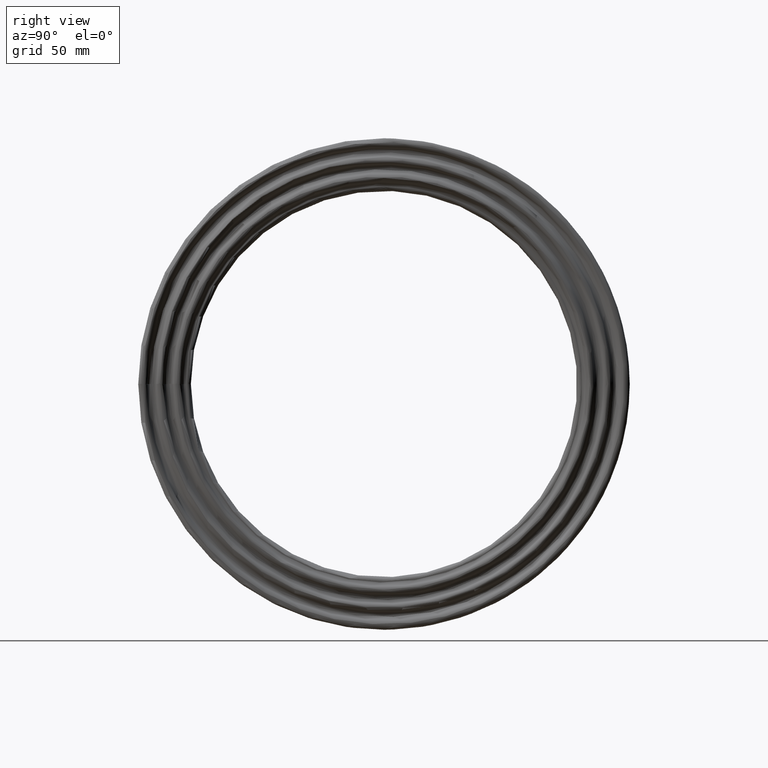
[diagram: clean part render]
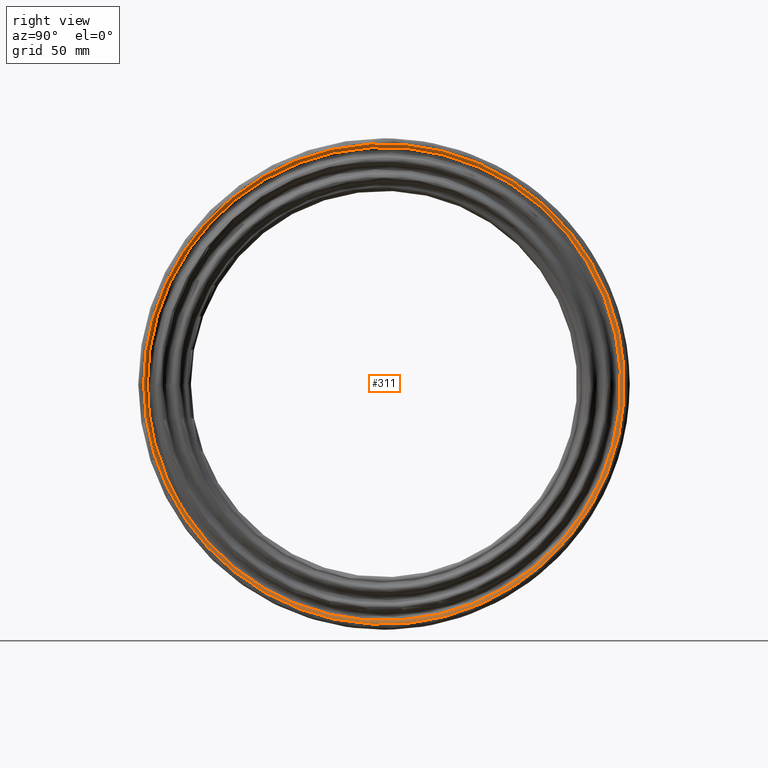
[diagram: same view with one face highlighted and labeled with its STEP entity id]
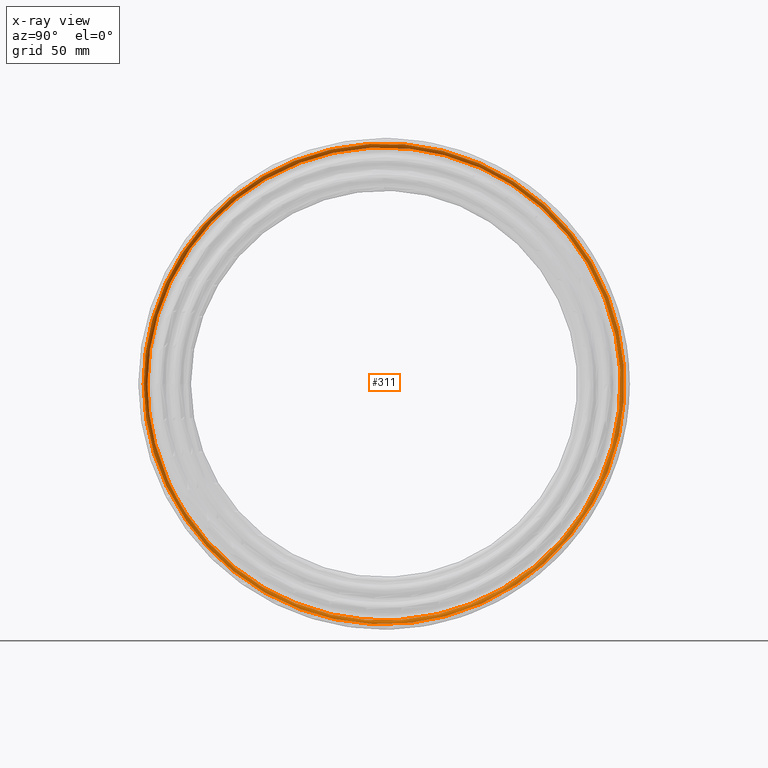
[diagram: x-ray of the same camera — body ghosted, the highlighted face saturated]
A machine part, right view. The second image highlights one B-rep face of the part: STEP entity #311.
The next image is the same camera in x-ray: the body ghosted, the highlighted face saturated — about 0% of this face is hidden behind the body in this view.
In plain terms, the highlighted face is a freeform B-spline surface patch.
Its self-contained STEP definition (entity closure, byte-faithful):
#16=B_SPLINE_SURFACE_WITH_KNOTS('',3,3,((#954,#955,#956,#957,#958,#959,
#960,#961,#962,#963,#964,#965,#966,#967,#968,#969,#970,#971,#972,#973,#974,
#975,#976,#977,#978,#979,#980,#981,#982,#983,#984,#985,#986,#987,#988,#989,
#990,#991,#992,#993,#994,#995,#996,#997,#998,#999,#1000,#1001,#1002),(#1003,
#1004,#1005,#1006,#1007,#1008,#1009,#1010,#1011,#1012,#1013,#1014,#1015,
#1016,#1017,#1018,#1019,#1020,#1021,#1022,#1023,#1024,#1025,#1026,#1027,
#1028,#1029,#1030,#1031,#1032,#1033,#1034,#1035,#1036,#1037,#1038,#1039,
#1040,#1041,#1042,#1043,#1044,#1045,#1046,#1047,#1048,#1049,#1050,#1051),
(#1052,#1053,#1054,#1055,#1056,#1057,#1058,#1059,#1060,#1061,#1062,#1063,
#1064,#1065,#1066,#1067,#1068,#1069,#1070,#1071,#1072,#1073,#1074,#1075,
#1076,#1077,#1078,#1079,#1080,#1081,#1082,#1083,#1084,#1085,#1086,#1087,
#1088,#1089,#1090,#1091,#1092,#1093,#1094,#1095,#1096,#1097,#1098,#1099,
#1100),(#1101,#1102,#1103,#1104,#1105,#1106,#1107,#1108,#1109,#1110,#1111,
#1112,#1113,#1114,#1115,#1116,#1117,#1118,#1119,#1120,#1121,#1122,#1123,
#1124,#1125,#1126,#1127,#1128,#1129,#1130,#1131,#1132,#1133,#1134,#1135,
#1136,#1137,#1138,#1139,#1140,#1141,#1142,#1143,#1144,#1145,#1146,#1147,
#1148,#1149),(#1150,#1151,#1152,#1153,#1154,#1155,#1156,#1157,#1158,#1159,
#1160,#1161,#1162,#1163,#1164,#1165,#1166,#1167,#1168,#1169,#1170,#1171,
#1172,#1173,#1174,#1175,#1176,#1177,#1178,#1179,#1180,#1181,#1182,#1183,
#1184,#1185,#1186,#1187,#1188,#1189,#1190,#1191,#1192,#1193,#1194,#1195,
#1196,#1197,#1198)),.UNSPECIFIED.,.F.,.T.,.F.,(4,1,4),(4,1,1,1,1,1,1,1,
1,1,1,1,1,1,1,1,1,1,1,1,1,1,1,1,1,1,1,1,1,1,1,1,1,1,1,1,1,1,1,1,1,1,1,1,
1,1,4),(0.,0.571428571428571,1.),(-41.5385224444254,-40.055003785696,-38.5714851269665,
-37.087966468237,-35.6044478095075,-32.6374104920486,-31.1538918333191,
-29.6703731745896,-27.6923482962836,-26.7033358571306,-25.7143234179777,
-23.7362985396717,-21.7582736613657,-19.7802487830597,-17.8022239047538,
-15.8241990264478,-14.8351865872948,-14.3406803677183,-13.8461741481418,
-10.8791368306829,-9.89012439152987,-7.91209951322389,-5.93407463491792,
-3.95604975661195,-1.97802487830597,1.97802487830597,5.93407463491792,7.4175932936474,
8.90111195237688,10.3846306111064,11.8681492698358,14.8351865872948,16.3187052460243,
17.8022239047538,20.7692612222127,22.2527798809422,23.7362985396717,25.7143234179777,
27.6923482962836,29.6703731745896,31.1538918333191,31.8956511626838,32.6374104920486,
35.6044478095075,38.5714851269665,40.055003785696,41.5385224444254),
 .UNSPECIFIED.);
#27=B_SPLINE_CURVE_WITH_KNOTS('',3,(#1202,#1203,#1204,#1205,#1206,#1207,
#1208,#1209,#1210,#1211,#1212,#1213,#1214,#1215,#1216,#1217,#1218,#1219,
#1220,#1221,#1222,#1223,#1224,#1225,#1226,#1227,#1228,#1229,#1230,#1231,
#1232,#1233,#1234,#1235,#1236,#1237,#1238,#1239,#1240,#1241,#1242,#1243,
#1244,#1245,#1246,#1247,#1248,#1249,#1250),.UNSPECIFIED.,.T.,.F.,(4,1,1,
1,1,1,1,1,1,1,1,1,1,1,1,1,1,1,1,1,1,1,1,1,1,1,1,1,1,1,1,1,1,1,1,1,1,1,1,
1,1,1,1,1,1,1,4),(-41.5385224444254,-40.055003785696,-38.5714851269665,
-37.087966468237,-35.6044478095075,-32.6374104920486,-31.1538918333191,
-29.6703731745896,-27.6923482962836,-26.7033358571306,-25.7143234179777,
-23.7362985396717,-21.7582736613657,-19.7802487830597,-17.8022239047538,
-15.8241990264478,-14.8351865872948,-14.3406803677183,-13.8461741481418,
-10.8791368306829,-9.89012439152987,-7.91209951322389,-5.93407463491792,
-3.95604975661195,-1.97802487830597,1.97802487830597,5.93407463491792,7.4175932936474,
8.90111195237688,10.3846306111064,11.8681492698358,14.8351865872948,16.3187052460243,
17.8022239047538,20.7692612222127,22.2527798809422,23.7362985396717,25.7143234179777,
27.6923482962836,29.6703731745896,31.1538918333191,31.8956511626838,32.6374104920486,
35.6044478095075,38.5714851269665,40.055003785696,41.5385224444254),
 .UNSPECIFIED.);
#28=B_SPLINE_CURVE_WITH_KNOTS('',3,(#1251,#1252,#1253,#1254,#1255,#1256,
#1257,#1258,#1259,#1260,#1261,#1262,#1263,#1264,#1265,#1266,#1267,#1268,
#1269,#1270,#1271,#1272,#1273,#1274,#1275,#1276,#1277,#1278,#1279,#1280,
#1281,#1282,#1283,#1284,#1285,#1286,#1287,#1288,#1289,#1290,#1291,#1292,
#1293,#1294,#1295,#1296,#1297,#1298,#1299),.UNSPECIFIED.,.T.,.F.,(4,1,1,
1,1,1,1,1,1,1,1,1,1,1,1,1,1,1,1,1,1,1,1,1,1,1,1,1,1,1,1,1,1,1,1,1,1,1,1,
1,1,1,1,1,1,1,4),(-41.5385224444254,-40.055003785696,-38.5714851269665,
-35.6044478095075,-32.6374104920486,-31.8956511626838,-31.1538918333191,
-29.6703731745896,-27.6923482962836,-25.7143234179777,-23.7362985396717,
-22.2527798809422,-20.7692612222127,-17.8022239047538,-16.3187052460243,
-14.8351865872948,-11.8681492698358,-10.3846306111064,-8.90111195237688,
-7.4175932936474,-5.93407463491792,-1.97802487830597,1.97802487830597,3.95604975661195,
5.93407463491792,7.91209951322389,9.89012439152987,10.8791368306829,13.8461741481418,
14.3406803677183,14.8351865872948,15.8241990264478,17.8022239047538,19.7802487830597,
21.7582736613657,23.7362985396717,25.7143234179777,26.7033358571306,27.6923482962836,
29.6703731745896,31.1538918333191,32.6374104920486,35.6044478095075,37.087966468237,
38.5714851269665,40.055003785696,41.5385224444254),.UNSPECIFIED.);
#72=FACE_OUTER_BOUND('',#105,.T.);
#105=EDGE_LOOP('',(#243,#244,#245,#246));
#150=CIRCLE('',#345,2.25);
#175=VERTEX_POINT('',#1199);
#176=VERTEX_POINT('',#1200);
#204=EDGE_CURVE('',#175,#176,#150,.T.);
#205=EDGE_CURVE('',#176,#176,#27,.T.);
#206=EDGE_CURVE('',#175,#175,#28,.T.);
#243=ORIENTED_EDGE('',*,*,#204,.T.);
#244=ORIENTED_EDGE('',*,*,#205,.T.);
#245=ORIENTED_EDGE('',*,*,#204,.F.);
#246=ORIENTED_EDGE('',*,*,#206,.T.);
#311=ADVANCED_FACE('',(#72),#16,.F.);
#345=AXIS2_PLACEMENT_3D('',#1201,#403,#404);
#403=DIRECTION('center_axis',(0.,-0.00081182891061768,0.999999670466856));
#404=DIRECTION('ref_axis',(1.,0.,0.));
#954=CARTESIAN_POINT('Ctrl Pts',(124.65,-130.957671081783,-0.108830614933108));
#955=CARTESIAN_POINT('Ctrl Pts',(124.65,-130.961216108405,4.77395304280881));
#956=CARTESIAN_POINT('Ctrl Pts',(124.65,-130.425708019639,14.5188818939948));
#957=CARTESIAN_POINT('Ctrl Pts',(124.65,-127.975323919352,29.090343558485));
#958=CARTESIAN_POINT('Ctrl Pts',(124.65,-123.880178533906,43.2942716606048));
#959=CARTESIAN_POINT('Ctrl Pts',(124.65,-116.444719003217,61.3125513200568));
#960=CARTESIAN_POINT('Ctrl Pts',(124.65,-105.91510343268,78.1172675412161));
#961=CARTESIAN_POINT('Ctrl Pts',(124.65,-92.8409401508834,92.7452942699471));
#962=CARTESIAN_POINT('Ctrl Pts',(124.65,-80.7249609452152,103.595784999238));
#963=CARTESIAN_POINT('Ctrl Pts',(124.65,-68.4883479046173,111.961772542282));
#964=CARTESIAN_POINT('Ctrl Pts',(124.65,-56.904870191585,118.08271617449));
#965=CARTESIAN_POINT('Ctrl Pts',(124.65,-44.9872357226106,123.287864444684));
#966=CARTESIAN_POINT('Ctrl Pts',(124.65,-29.3646462335705,128.133204620279));
#967=CARTESIAN_POINT('Ctrl Pts',(124.65,-9.80943368560868,131.079879217141));
#968=CARTESIAN_POINT('Ctrl Pts',(124.65,9.69780996983344,131.083597877989));
#969=CARTESIAN_POINT('Ctrl Pts',(124.65,29.2101041650635,128.170743464469));
#970=CARTESIAN_POINT('Ctrl Pts',(124.65,44.8977777010314,123.320527478537));
#971=CARTESIAN_POINT('Ctrl Pts',(124.65,55.3083095225759,118.783727935107));
#972=CARTESIAN_POINT('Ctrl Pts',(124.65,61.1398356160118,115.843702479551));
#973=CARTESIAN_POINT('Ctrl Pts',(124.65,72.5912268331176,109.530254813661));
#974=CARTESIAN_POINT('Ctrl Pts',(124.65,84.5695837078912,100.679563710782));
#975=CARTESIAN_POINT('Ctrl Pts',(124.65,98.3423448776455,86.9031672273606));
#976=CARTESIAN_POINT('Ctrl Pts',(124.65,108.596558057143,74.0796539980984));
#977=CARTESIAN_POINT('Ctrl Pts',(124.65,118.44403111716,56.991064141811));
#978=CARTESIAN_POINT('Ctrl Pts',(124.65,125.582103927173,38.8279442439722));
#979=CARTESIAN_POINT('Ctrl Pts',(124.65,131.457953122996,13.1326221967826));
#980=CARTESIAN_POINT('Ctrl Pts',(124.65,131.426641280894,-19.7264520513109));
#981=CARTESIAN_POINT('Ctrl Pts',(124.65,122.276558809697,-49.5876836698971));
#982=CARTESIAN_POINT('Ctrl Pts',(124.65,111.262082240206,-69.5816662198445));
#983=CARTESIAN_POINT('Ctrl Pts',(124.65,102.732132546793,-81.6726282324016));
#984=CARTESIAN_POINT('Ctrl Pts',(124.65,92.912084905339,-92.6692896805889));
#985=CARTESIAN_POINT('Ctrl Pts',(124.65,78.413909623472,-105.691372631273));
#986=CARTESIAN_POINT('Ctrl Pts',(124.65,61.5878866347077,-116.30572282949));
#987=CARTESIAN_POINT('Ctrl Pts',(124.65,43.5447386430267,-123.790532534644));
#988=CARTESIAN_POINT('Ctrl Pts',(124.65,24.7305641660107,-129.26432821957));
#989=CARTESIAN_POINT('Ctrl Pts',(124.65,5.00149211385442,-131.504362654842));
#990=CARTESIAN_POINT('Ctrl Pts',(124.65,-14.4491799494935,-130.429813776537));
#991=CARTESIAN_POINT('Ctrl Pts',(124.65,-30.6512721215587,-127.717435764624));
#992=CARTESIAN_POINT('Ctrl Pts',(124.65,-47.912000407163,-122.398793057873));
#993=CARTESIAN_POINT('Ctrl Pts',(124.65,-65.5137216001761,-113.955641300163));
#994=CARTESIAN_POINT('Ctrl Pts',(124.65,-80.5045028362632,-103.777368589552));
#995=CARTESIAN_POINT('Ctrl Pts',(124.65,-90.8830156987348,-94.5079881542439));
#996=CARTESIAN_POINT('Ctrl Pts',(124.65,-97.5815943936001,-87.4376233930404));
#997=CARTESIAN_POINT('Ctrl Pts',(124.65,-107.07309587844,-76.2444434021714));
#998=CARTESIAN_POINT('Ctrl Pts',(124.65,-118.96026060563,-57.3441718140211));
#999=CARTESIAN_POINT('Ctrl Pts',(124.65,-127.063328380664,-34.2457365507681));
#1000=CARTESIAN_POINT('Ctrl Pts',(124.65,-130.404437859911,-14.7778200524567));
#1001=CARTESIAN_POINT('Ctrl Pts',(124.65,-130.954126055162,-4.99161427267503));
#1002=CARTESIAN_POINT('Ctrl Pts',(124.65,-130.957671081783,-0.108830614933108));
#1003=CARTESIAN_POINT('Ctrl Pts',(125.105355940461,-131.156402577936,-0.108995822006488));
#1004=CARTESIAN_POINT('Ctrl Pts',(125.105355940461,-131.159952608357,4.78119442321774));
#1005=CARTESIAN_POINT('Ctrl Pts',(125.105355940461,-130.62363121532,14.5409052083821));
#1006=CARTESIAN_POINT('Ctrl Pts',(125.105355940461,-128.169530543908,29.1344911967642));
#1007=CARTESIAN_POINT('Ctrl Pts',(125.105355940461,-124.068166066949,43.3599753686274));
#1008=CARTESIAN_POINT('Ctrl Pts',(125.105355940461,-116.621439778712,61.4055699890023));
#1009=CARTESIAN_POINT('Ctrl Pts',(125.105355940461,-106.075817756107,78.2358345241083));
#1010=CARTESIAN_POINT('Ctrl Pts',(125.105355940461,-92.9818272559156,92.8860344074895));
#1011=CARTESIAN_POINT('Ctrl Pts',(125.105355940461,-80.8474762764596,103.752986681619));
#1012=CARTESIAN_POINT('Ctrl Pts',(125.105355940461,-68.5922584612096,112.131688508307));
#1013=CARTESIAN_POINT('Ctrl Pts',(125.105355940461,-56.9912267618248,118.26190880736));
#1014=CARTESIAN_POINT('Ctrl Pts',(125.105355940461,-45.0555201429594,123.474948560351));
#1015=CARTESIAN_POINT('Ctrl Pts',(125.105355940461,-29.4091955432063,128.32765601771));
#1016=CARTESIAN_POINT('Ctrl Pts',(125.105355940461,-9.8243266587327,131.27879059349));
#1017=CARTESIAN_POINT('Ctrl Pts',(125.105355940461,9.71253045774402,131.282522663668));
#1018=CARTESIAN_POINT('Ctrl Pts',(125.105355940461,29.2544139801513,128.365247070436));
#1019=CARTESIAN_POINT('Ctrl Pts',(125.105355940461,44.9659444446173,123.507658651108));
#1020=CARTESIAN_POINT('Ctrl Pts',(125.105355940461,55.3922424441104,118.963982874901));
#1021=CARTESIAN_POINT('Ctrl Pts',(125.105355940461,61.2326118288304,116.019501962068));
#1022=CARTESIAN_POINT('Ctrl Pts',(125.105355940461,72.7013187357341,109.696502907458));
#1023=CARTESIAN_POINT('Ctrl Pts',(125.105355940461,84.6979696209217,100.832313418957));
#1024=CARTESIAN_POINT('Ctrl Pts',(125.105355940461,98.4915464118889,87.0350723084942));
#1025=CARTESIAN_POINT('Ctrl Pts',(125.105355940461,108.76137487479,74.1920582050284));
#1026=CARTESIAN_POINT('Ctrl Pts',(125.105355940461,118.623762105649,57.0775532957814));
#1027=CARTESIAN_POINT('Ctrl Pts',(125.105355940461,125.772684000528,38.886868675516));
#1028=CARTESIAN_POINT('Ctrl Pts',(125.105355940461,131.657433067035,13.1525501725651));
#1029=CARTESIAN_POINT('Ctrl Pts',(125.105355940461,131.626095984788,-19.7563842348226));
#1030=CARTESIAN_POINT('Ctrl Pts',(125.105355940461,122.462104004358,-49.662940027176));
#1031=CARTESIAN_POINT('Ctrl Pts',(125.105355940461,111.430929117808,-69.6872586266847));
#1032=CARTESIAN_POINT('Ctrl Pts',(125.105355940461,102.888019671345,-81.7965779691335));
#1033=CARTESIAN_POINT('Ctrl Pts',(125.105355940461,93.0530861328584,-92.8099128795599));
#1034=CARTESIAN_POINT('Ctrl Pts',(125.105355940461,78.5329230933385,-105.851746243988));
#1035=CARTESIAN_POINT('Ctrl Pts',(125.105355940461,61.6813278294475,-116.482232875799));
#1036=CARTESIAN_POINT('Ctrl Pts',(125.105355940461,43.6108168671011,-123.97838479386));
#1037=CARTESIAN_POINT('Ctrl Pts',(125.105355940461,24.768120477641,-129.460487275609));
#1038=CARTESIAN_POINT('Ctrl Pts',(125.105355940461,5.00905108132669,-131.703923531577));
#1039=CARTESIAN_POINT('Ctrl Pts',(125.105355940461,-14.4710979217004,-130.627744125245));
#1040=CARTESIAN_POINT('Ctrl Pts',(125.105355940461,-30.6977920467709,-127.911248985334));
#1041=CARTESIAN_POINT('Ctrl Pts',(125.105355940461,-47.984709635484,-122.584534037209));
#1042=CARTESIAN_POINT('Ctrl Pts',(125.105355940461,-65.6131338563275,-114.128575045788));
#1043=CARTESIAN_POINT('Ctrl Pts',(125.105355940461,-80.626668304182,-103.934855269323));
#1044=CARTESIAN_POINT('Ctrl Pts',(125.105355940461,-91.020948602764,-94.6513897764169));
#1045=CARTESIAN_POINT('Ctrl Pts',(125.105355940461,-97.7296744075116,-87.5703152717136));
#1046=CARTESIAN_POINT('Ctrl Pts',(125.105355940461,-107.235555963619,-76.3601758187098));
#1047=CARTESIAN_POINT('Ctrl Pts',(125.105355940461,-119.140800501208,-57.4311781937769));
#1048=CARTESIAN_POINT('Ctrl Pts',(125.105355940461,-127.25614699308,-34.2977013035704));
#1049=CARTESIAN_POINT('Ctrl Pts',(125.105355940461,-130.602331032794,-14.8002362629633));
#1050=CARTESIAN_POINT('Ctrl Pts',(125.105355940461,-131.152852547515,-4.99918606723072));
#1051=CARTESIAN_POINT('Ctrl Pts',(125.105355940461,-131.156402577936,-0.108995822006488));
#1052=CARTESIAN_POINT('Ctrl Pts',(125.779898755129,-131.777261834775,-0.109511712328912));
#1053=CARTESIAN_POINT('Ctrl Pts',(125.779898755129,-131.780829134847,4.80383128667076));
#1054=CARTESIAN_POINT('Ctrl Pts',(125.779898755129,-131.241969753129,14.6097496376086));
#1055=CARTESIAN_POINT('Ctrl Pts',(125.779898755129,-128.776249619188,29.2724031952796));
#1056=CARTESIAN_POINT('Ctrl Pts',(125.779898755129,-124.655476079093,43.5652254403307));
#1057=CARTESIAN_POINT('Ctrl Pts',(125.779898755129,-117.173478290757,61.6962779667241));
#1058=CARTESIAN_POINT('Ctrl Pts',(125.779898755129,-106.577970124689,78.6061546658972));
#1059=CARTESIAN_POINT('Ctrl Pts',(125.779898755129,-93.4219799268011,93.3257358742402));
#1060=CARTESIAN_POINT('Ctrl Pts',(125.779898755129,-81.230170223718,104.24413475734));
#1061=CARTESIAN_POINT('Ctrl Pts',(125.779898755129,-68.9169832797232,112.662476001074));
#1062=CARTESIAN_POINT('Ctrl Pts',(125.779898755129,-57.2610054490966,118.821729977929));
#1063=CARTESIAN_POINT('Ctrl Pts',(125.779898755129,-45.2687821287045,124.059456085857));
#1064=CARTESIAN_POINT('Ctrl Pts',(125.779898755129,-29.5484259587074,128.93511720531));
#1065=CARTESIAN_POINT('Ctrl Pts',(125.779898755129,-9.87082383689819,131.900236094245));
#1066=CARTESIAN_POINT('Ctrl Pts',(125.779898755129,9.75850224774581,131.903976228147));
#1067=CARTESIAN_POINT('Ctrl Pts',(125.779898755129,29.392917850531,128.972892086776));
#1068=CARTESIAN_POINT('Ctrl Pts',(125.779898755129,45.1787600495172,124.092324121109));
#1069=CARTESIAN_POINT('Ctrl Pts',(125.779898755129,55.6544529926404,119.527129325389));
#1070=CARTESIAN_POINT('Ctrl Pts',(125.779898755129,61.5224767788413,116.568702481647));
#1071=CARTESIAN_POINT('Ctrl Pts',(125.779898755129,73.0455502310593,110.215735661539));
#1072=CARTESIAN_POINT('Ctrl Pts',(125.779898755129,85.0988459213124,101.309668622694));
#1073=CARTESIAN_POINT('Ctrl Pts',(125.779898755129,98.9578227666541,87.4470391563631));
#1074=CARTESIAN_POINT('Ctrl Pts',(125.779898755129,109.276198749841,74.5432802103687));
#1075=CARTESIAN_POINT('Ctrl Pts',(125.779898755129,119.185308494372,57.3477384259259));
#1076=CARTESIAN_POINT('Ctrl Pts',(125.779898755129,126.368050593161,39.0709461316591));
#1077=CARTESIAN_POINT('Ctrl Pts',(125.779898755129,132.280677350998,13.2148121829384));
#1078=CARTESIAN_POINT('Ctrl Pts',(125.779898755129,132.249164382625,-19.8499096120877));
#1079=CARTESIAN_POINT('Ctrl Pts',(125.779898755129,123.041822237678,-49.898023872863));
#1080=CARTESIAN_POINT('Ctrl Pts',(125.779898755129,111.958408418948,-70.0171387981212));
#1081=CARTESIAN_POINT('Ctrl Pts',(125.779898755129,103.375078101753,-82.1837692881917));
#1082=CARTESIAN_POINT('Ctrl Pts',(125.779898755129,93.4935685090789,-93.249255985474));
#1083=CARTESIAN_POINT('Ctrl Pts',(125.779898755129,78.9046541165697,-106.352839394106));
#1084=CARTESIAN_POINT('Ctrl Pts',(125.779898755129,61.9733353622006,-117.033612171218));
#1085=CARTESIAN_POINT('Ctrl Pts',(125.779898755129,43.8172612472149,-124.565268858128));
#1086=CARTESIAN_POINT('Ctrl Pts',(125.779898755129,24.8853326487996,-130.073321925017));
#1087=CARTESIAN_POINT('Ctrl Pts',(125.779898755129,5.03280081951119,-132.327374899364));
#1088=CARTESIAN_POINT('Ctrl Pts',(125.779898755129,-14.539611367476,-131.246100991868));
#1089=CARTESIAN_POINT('Ctrl Pts',(125.779898755129,-30.8430999161087,-128.516747962506));
#1090=CARTESIAN_POINT('Ctrl Pts',(125.779898755129,-48.2118544289408,-123.164819096402));
#1091=CARTESIAN_POINT('Ctrl Pts',(125.779898755129,-65.9237367998179,-114.668825113483));
#1092=CARTESIAN_POINT('Ctrl Pts',(125.779898755129,-81.0083359398959,-104.426852589833));
#1093=CARTESIAN_POINT('Ctrl Pts',(125.779898755129,-91.4517979820165,-95.0994645893644));
#1094=CARTESIAN_POINT('Ctrl Pts',(125.779898755129,-98.1923035373339,-87.9848458050747));
#1095=CARTESIAN_POINT('Ctrl Pts',(125.779898755129,-107.743212466988,-76.7216078329117));
#1096=CARTESIAN_POINT('Ctrl Pts',(125.77989875513,-119.704762860366,-57.7030603178217));
#1097=CARTESIAN_POINT('Ctrl Pts',(125.779898755129,-127.858547346478,-34.4600623714381));
#1098=CARTESIAN_POINT('Ctrl Pts',(125.77989875513,-131.220565952694,-14.8703083563894));
#1099=CARTESIAN_POINT('Ctrl Pts',(125.779898755129,-131.773694534702,-5.02285471132858));
#1100=CARTESIAN_POINT('Ctrl Pts',(125.779898755129,-131.777261834775,-0.109511712328912));
#1101=CARTESIAN_POINT('Ctrl Pts',(126.,-132.647200700217,-0.110234667683714));
#1102=CARTESIAN_POINT('Ctrl Pts',(126.,-132.650791519329,4.83554392669577));
#1103=CARTESIAN_POINT('Ctrl Pts',(126.,-132.108374757435,14.706196375418));
#1104=CARTESIAN_POINT('Ctrl Pts',(126.,-129.626377120672,29.4656476592099));
#1105=CARTESIAN_POINT('Ctrl Pts',(126.,-125.478399564075,43.8528252959499));
#1106=CARTESIAN_POINT('Ctrl Pts',(126.,-117.947010098635,62.1035692039368));
#1107=CARTESIAN_POINT('Ctrl Pts',(126.,-107.281552525826,79.1250817304231));
#1108=CARTESIAN_POINT('Ctrl Pts',(126.,-94.0387130105682,93.9418334453328));
#1109=CARTESIAN_POINT('Ctrl Pts',(126.,-81.7664192229194,104.932310716747));
#1110=CARTESIAN_POINT('Ctrl Pts',(126.,-69.3719428205452,113.406227891743));
#1111=CARTESIAN_POINT('Ctrl Pts',(126.,-57.639019040342,119.606141725997));
#1112=CARTESIAN_POINT('Ctrl Pts',(126.,-45.567629109779,124.878444519741));
#1113=CARTESIAN_POINT('Ctrl Pts',(126.,-29.743491415092,129.786293909595));
#1114=CARTESIAN_POINT('Ctrl Pts',(126.,-9.93598749138268,132.770986328094));
#1115=CARTESIAN_POINT('Ctrl Pts',(126.,9.82292414818454,132.774751789141));
#1116=CARTESIAN_POINT('Ctrl Pts',(126.,29.5869562993569,129.824317775352));
#1117=CARTESIAN_POINT('Ctrl Pts',(126.,45.47701422338,124.911529330475));
#1118=CARTESIAN_POINT('Ctrl Pts',(126.,56.0218607225447,120.316197705032));
#1119=CARTESIAN_POINT('Ctrl Pts',(126.,61.928622262221,117.338241053563));
#1120=CARTESIAN_POINT('Ctrl Pts',(126.,73.5277611829368,110.943336990479));
#1121=CARTESIAN_POINT('Ctrl Pts',(126.,85.6606372860215,101.978470278615));
#1122=CARTESIAN_POINT('Ctrl Pts',(126.,99.611098397373,88.0243305085705));
#1123=CARTESIAN_POINT('Ctrl Pts',(126.,109.997596468211,75.0353829449086));
#1124=CARTESIAN_POINT('Ctrl Pts',(126.,119.972119621953,57.7263247383703));
#1125=CARTESIAN_POINT('Ctrl Pts',(126.,127.202280590432,39.3288764939196));
#1126=CARTESIAN_POINT('Ctrl Pts',(126.,133.153938676832,13.3020508055585));
#1127=CARTESIAN_POINT('Ctrl Pts',(126.,133.122219498145,-19.9809502265249));
#1128=CARTESIAN_POINT('Ctrl Pts',(126.,123.854092327281,-50.2274304226479));
#1129=CARTESIAN_POINT('Ctrl Pts',(126.,112.697511749844,-70.4793629706966));
#1130=CARTESIAN_POINT('Ctrl Pts',(126.,104.057516586163,-82.7263132497723));
#1131=CARTESIAN_POINT('Ctrl Pts',(126.,94.1107746956055,-93.8648485369633));
#1132=CARTESIAN_POINT('Ctrl Pts',(126.,79.4255514496595,-107.05493547766));
#1133=CARTESIAN_POINT('Ctrl Pts',(126.,62.3824560024167,-117.806220657409));
#1134=CARTESIAN_POINT('Ctrl Pts',(126.,44.1065244820766,-125.387596895202));
#1135=CARTESIAN_POINT('Ctrl Pts',(126.,25.0496175188796,-130.93201186003));
#1136=CARTESIAN_POINT('Ctrl Pts',(126.,5.06602275111112,-133.200945363806));
#1137=CARTESIAN_POINT('Ctrl Pts',(126.,-14.635595116912,-132.112533344481));
#1138=CARTESIAN_POINT('Ctrl Pts',(126.,-31.0467137587898,-129.365162173457));
#1139=CARTESIAN_POINT('Ctrl Pts',(126.,-48.5301292396482,-123.97790200351));
#1140=CARTESIAN_POINT('Ctrl Pts',(126.,-66.358937459979,-115.425821436771));
#1141=CARTESIAN_POINT('Ctrl Pts',(126.,-81.5431192264312,-105.116235550103));
#1142=CARTESIAN_POINT('Ctrl Pts',(126.,-92.0555261338824,-95.7272704805012));
#1143=CARTESIAN_POINT('Ctrl Pts',(126.,-98.840528226143,-88.5656855466831));
#1144=CARTESIAN_POINT('Ctrl Pts',(126.,-108.45448637118,-77.2280945140686));
#1145=CARTESIAN_POINT('Ctrl Pts',(126.,-120.495005301071,-58.0839907921606));
#1146=CARTESIAN_POINT('Ctrl Pts',(126.,-128.702616227186,-34.6875530931801));
#1147=CARTESIAN_POINT('Ctrl Pts',(126.,-132.086829842763,-14.9684751908589));
#1148=CARTESIAN_POINT('Ctrl Pts',(126.,-132.643609881105,-5.0560132620632));
#1149=CARTESIAN_POINT('Ctrl Pts',(126.,-132.647200700217,-0.110234667683714));
#1150=CARTESIAN_POINT('Ctrl Pts',(126.,-133.019825084867,-0.110544340340621));
#1151=CARTESIAN_POINT('Ctrl Pts',(126.,-133.023425934036,4.84912715285857));
#1152=CARTESIAN_POINT('Ctrl Pts',(126.,-132.47948534842,14.7475066868051));
#1153=CARTESIAN_POINT('Ctrl Pts',(126.,-129.990515731609,29.5484211031195));
#1154=CARTESIAN_POINT('Ctrl Pts',(126.,-125.830885231392,43.9760145083357));
#1155=CARTESIAN_POINT('Ctrl Pts',(126.,-118.278341588643,62.2780230033839));
#1156=CARTESIAN_POINT('Ctrl Pts',(126.,-107.582919091942,79.347358414392));
#1157=CARTESIAN_POINT('Ctrl Pts',(126.,-94.3028805992794,94.2057286092726));
#1158=CARTESIAN_POINT('Ctrl Pts',(126.,-81.996114440744,105.227078996558));
#1159=CARTESIAN_POINT('Ctrl Pts',(126.,-69.5668148598512,113.724803417321));
#1160=CARTESIAN_POINT('Ctrl Pts',(126.,-57.8009353467698,119.942131845544));
#1161=CARTESIAN_POINT('Ctrl Pts',(126.,-45.695637204301,125.229244137039));
#1162=CARTESIAN_POINT('Ctrl Pts',(126.,-29.8270431460956,130.150882535997));
#1163=CARTESIAN_POINT('Ctrl Pts',(126.,-9.96390010804626,133.143957597723));
#1164=CARTESIAN_POINT('Ctrl Pts',(126.,9.8505186846818,133.147734815289));
#1165=CARTESIAN_POINT('Ctrl Pts',(126.,29.6700675466424,130.18901249392));
#1166=CARTESIAN_POINT('Ctrl Pts',(126.,45.6047705121505,125.262421506597));
#1167=CARTESIAN_POINT('Ctrl Pts',(126.,56.1792340812033,120.654182243275));
#1168=CARTESIAN_POINT('Ctrl Pts',(126.,62.1025875932113,117.667861025033));
#1169=CARTESIAN_POINT('Ctrl Pts',(126.,73.7343006810724,111.25499725568));
#1170=CARTESIAN_POINT('Ctrl Pts',(126.,85.9012774081667,102.264936783011));
#1171=CARTESIAN_POINT('Ctrl Pts',(126.,99.8909144153199,88.2716072179177));
#1172=CARTESIAN_POINT('Ctrl Pts',(126.,110.306597836171,75.2461656944145));
#1173=CARTESIAN_POINT('Ctrl Pts',(126.,120.309136314068,57.8884865691435));
#1174=CARTESIAN_POINT('Ctrl Pts',(126.,127.559610370208,39.4393570767814));
#1175=CARTESIAN_POINT('Ctrl Pts',(126.,133.527984928161,13.339417943915));
#1176=CARTESIAN_POINT('Ctrl Pts',(126.,133.496180027196,-20.0370790022044));
#1177=CARTESIAN_POINT('Ctrl Pts',(126.,124.202013753647,-50.3685271251816));
#1178=CARTESIAN_POINT('Ctrl Pts',(126.,113.014095286771,-70.6773493543351));
#1179=CARTESIAN_POINT('Ctrl Pts',(126.,104.349826849285,-82.9587043809811));
#1180=CARTESIAN_POINT('Ctrl Pts',(126.,94.3751456503851,-94.1285271967967));
#1181=CARTESIAN_POINT('Ctrl Pts',(126.,79.6486716369661,-107.355665263867));
#1182=CARTESIAN_POINT('Ctrl Pts',(126.,62.5576939466133,-118.137156680849));
#1183=CARTESIAN_POINT('Ctrl Pts',(126.,44.2304255246287,-125.739827601527));
#1184=CARTESIAN_POINT('Ctrl Pts',(126.,25.1199894778094,-131.299817623833));
#1185=CARTESIAN_POINT('Ctrl Pts',(126.,5.08024921833538,-133.57512525799));
#1186=CARTESIAN_POINT('Ctrl Pts',(126.,-14.6767071651807,-132.483655757529));
#1187=CARTESIAN_POINT('Ctrl Pts',(126.,-31.1339291738944,-129.728566683874));
#1188=CARTESIAN_POINT('Ctrl Pts',(126.,-48.6664573444253,-124.326172790514));
#1189=CARTESIAN_POINT('Ctrl Pts',(126.,-66.5453479427853,-115.75006907167));
#1190=CARTESIAN_POINT('Ctrl Pts',(126.,-81.7721848393005,-105.411521933137));
#1191=CARTESIAN_POINT('Ctrl Pts',(126.,-92.314125255642,-95.9961791436357));
#1192=CARTESIAN_POINT('Ctrl Pts',(126.,-99.1181846051073,-88.8144793161078));
#1193=CARTESIAN_POINT('Ctrl Pts',(126.,-108.759146122495,-77.4450434348069));
#1194=CARTESIAN_POINT('Ctrl Pts',(126.,-120.833494724635,-58.2471545296037));
#1195=CARTESIAN_POINT('Ctrl Pts',(126.,-129.064159252967,-34.7849946341881));
#1196=CARTESIAN_POINT('Ctrl Pts',(126.,-132.457880253406,-15.01052227239));
#1197=CARTESIAN_POINT('Ctrl Pts',(126.,-133.016224235698,-5.07021583353981));
#1198=CARTESIAN_POINT('Ctrl Pts',(126.,-133.019825084867,-0.110544340340621));
#1199=CARTESIAN_POINT('',(126.,-133.020107624245,-0.107989604649733));
#1200=CARTESIAN_POINT('',(124.65,-130.957949241064,-0.106315484304316));
#1201=CARTESIAN_POINT('Origin',(123.75,-133.020107624245,-0.107989604649733));
#1202=CARTESIAN_POINT('Ctrl Pts',(124.65,-130.957671081783,-0.108830614933108));
#1203=CARTESIAN_POINT('Ctrl Pts',(124.65,-130.961216108405,4.77395304280881));
#1204=CARTESIAN_POINT('Ctrl Pts',(124.65,-130.425708019639,14.5188818939948));
#1205=CARTESIAN_POINT('Ctrl Pts',(124.65,-127.975323919352,29.090343558485));
#1206=CARTESIAN_POINT('Ctrl Pts',(124.65,-123.880178533906,43.2942716606048));
#1207=CARTESIAN_POINT('Ctrl Pts',(124.65,-116.444719003217,61.3125513200568));
#1208=CARTESIAN_POINT('Ctrl Pts',(124.65,-105.91510343268,78.1172675412161));
#1209=CARTESIAN_POINT('Ctrl Pts',(124.65,-92.8409401508834,92.7452942699471));
#1210=CARTESIAN_POINT('Ctrl Pts',(124.65,-80.7249609452152,103.595784999238));
#1211=CARTESIAN_POINT('Ctrl Pts',(124.65,-68.4883479046173,111.961772542282));
#1212=CARTESIAN_POINT('Ctrl Pts',(124.65,-56.904870191585,118.08271617449));
#1213=CARTESIAN_POINT('Ctrl Pts',(124.65,-44.9872357226106,123.287864444684));
#1214=CARTESIAN_POINT('Ctrl Pts',(124.65,-29.3646462335705,128.133204620279));
#1215=CARTESIAN_POINT('Ctrl Pts',(124.65,-9.80943368560868,131.079879217141));
#1216=CARTESIAN_POINT('Ctrl Pts',(124.65,9.69780996983344,131.083597877989));
#1217=CARTESIAN_POINT('Ctrl Pts',(124.65,29.2101041650635,128.170743464469));
#1218=CARTESIAN_POINT('Ctrl Pts',(124.65,44.8977777010314,123.320527478537));
#1219=CARTESIAN_POINT('Ctrl Pts',(124.65,55.3083095225759,118.783727935107));
#1220=CARTESIAN_POINT('Ctrl Pts',(124.65,61.1398356160118,115.843702479551));
#1221=CARTESIAN_POINT('Ctrl Pts',(124.65,72.5912268331176,109.530254813661));
#1222=CARTESIAN_POINT('Ctrl Pts',(124.65,84.5695837078912,100.679563710782));
#1223=CARTESIAN_POINT('Ctrl Pts',(124.65,98.3423448776455,86.9031672273606));
#1224=CARTESIAN_POINT('Ctrl Pts',(124.65,108.596558057143,74.0796539980984));
#1225=CARTESIAN_POINT('Ctrl Pts',(124.65,118.44403111716,56.991064141811));
#1226=CARTESIAN_POINT('Ctrl Pts',(124.65,125.582103927173,38.8279442439722));
#1227=CARTESIAN_POINT('Ctrl Pts',(124.65,131.457953122996,13.1326221967826));
#1228=CARTESIAN_POINT('Ctrl Pts',(124.65,131.426641280894,-19.7264520513109));
#1229=CARTESIAN_POINT('Ctrl Pts',(124.65,122.276558809697,-49.5876836698971));
#1230=CARTESIAN_POINT('Ctrl Pts',(124.65,111.262082240206,-69.5816662198445));
#1231=CARTESIAN_POINT('Ctrl Pts',(124.65,102.732132546793,-81.6726282324016));
#1232=CARTESIAN_POINT('Ctrl Pts',(124.65,92.912084905339,-92.6692896805889));
#1233=CARTESIAN_POINT('Ctrl Pts',(124.65,78.413909623472,-105.691372631273));
#1234=CARTESIAN_POINT('Ctrl Pts',(124.65,61.5878866347077,-116.30572282949));
#1235=CARTESIAN_POINT('Ctrl Pts',(124.65,43.5447386430267,-123.790532534644));
#1236=CARTESIAN_POINT('Ctrl Pts',(124.65,24.7305641660107,-129.26432821957));
#1237=CARTESIAN_POINT('Ctrl Pts',(124.65,5.00149211385442,-131.504362654842));
#1238=CARTESIAN_POINT('Ctrl Pts',(124.65,-14.4491799494935,-130.429813776537));
#1239=CARTESIAN_POINT('Ctrl Pts',(124.65,-30.6512721215587,-127.717435764624));
#1240=CARTESIAN_POINT('Ctrl Pts',(124.65,-47.912000407163,-122.398793057873));
#1241=CARTESIAN_POINT('Ctrl Pts',(124.65,-65.5137216001761,-113.955641300163));
#1242=CARTESIAN_POINT('Ctrl Pts',(124.65,-80.5045028362632,-103.777368589552));
#1243=CARTESIAN_POINT('Ctrl Pts',(124.65,-90.8830156987348,-94.5079881542439));
#1244=CARTESIAN_POINT('Ctrl Pts',(124.65,-97.5815943936001,-87.4376233930404));
#1245=CARTESIAN_POINT('Ctrl Pts',(124.65,-107.07309587844,-76.2444434021714));
#1246=CARTESIAN_POINT('Ctrl Pts',(124.65,-118.96026060563,-57.3441718140211));
#1247=CARTESIAN_POINT('Ctrl Pts',(124.65,-127.063328380664,-34.2457365507681));
#1248=CARTESIAN_POINT('Ctrl Pts',(124.65,-130.404437859911,-14.7778200524567));
#1249=CARTESIAN_POINT('Ctrl Pts',(124.65,-130.954126055162,-4.99161427267503));
#1250=CARTESIAN_POINT('Ctrl Pts',(124.65,-130.957671081783,-0.108830614933108));
#1251=CARTESIAN_POINT('Ctrl Pts',(126.,-133.019825084867,-0.110544340340621));
#1252=CARTESIAN_POINT('Ctrl Pts',(126.,-133.016224235698,-5.07021583353981));
#1253=CARTESIAN_POINT('Ctrl Pts',(126.,-132.457880253406,-15.01052227239));
#1254=CARTESIAN_POINT('Ctrl Pts',(126.,-129.064159252967,-34.7849946341881));
#1255=CARTESIAN_POINT('Ctrl Pts',(126.,-120.833494724635,-58.2471545296037));
#1256=CARTESIAN_POINT('Ctrl Pts',(126.,-108.759146122495,-77.4450434348069));
#1257=CARTESIAN_POINT('Ctrl Pts',(126.,-99.1181846051073,-88.8144793161078));
#1258=CARTESIAN_POINT('Ctrl Pts',(126.,-92.314125255642,-95.9961791436357));
#1259=CARTESIAN_POINT('Ctrl Pts',(126.,-81.7721848393005,-105.411521933137));
#1260=CARTESIAN_POINT('Ctrl Pts',(126.,-66.5453479427853,-115.75006907167));
#1261=CARTESIAN_POINT('Ctrl Pts',(126.,-48.6664573444253,-124.326172790514));
#1262=CARTESIAN_POINT('Ctrl Pts',(126.,-31.1339291738944,-129.728566683874));
#1263=CARTESIAN_POINT('Ctrl Pts',(126.,-14.6767071651807,-132.483655757529));
#1264=CARTESIAN_POINT('Ctrl Pts',(126.,5.08024921833538,-133.57512525799));
#1265=CARTESIAN_POINT('Ctrl Pts',(126.,25.1199894778094,-131.299817623833));
#1266=CARTESIAN_POINT('Ctrl Pts',(126.,44.2304255246287,-125.739827601527));
#1267=CARTESIAN_POINT('Ctrl Pts',(126.,62.5576939466133,-118.137156680849));
#1268=CARTESIAN_POINT('Ctrl Pts',(126.,79.6486716369661,-107.355665263867));
#1269=CARTESIAN_POINT('Ctrl Pts',(126.,94.3751456503851,-94.1285271967967));
#1270=CARTESIAN_POINT('Ctrl Pts',(126.,104.349826849285,-82.9587043809811));
#1271=CARTESIAN_POINT('Ctrl Pts',(126.,113.014095286771,-70.6773493543351));
#1272=CARTESIAN_POINT('Ctrl Pts',(126.,124.202013753647,-50.3685271251816));
#1273=CARTESIAN_POINT('Ctrl Pts',(126.,133.496180027196,-20.0370790022044));
#1274=CARTESIAN_POINT('Ctrl Pts',(126.,133.527984928161,13.339417943915));
#1275=CARTESIAN_POINT('Ctrl Pts',(126.,127.559610370208,39.4393570767814));
#1276=CARTESIAN_POINT('Ctrl Pts',(126.,120.309136314068,57.8884865691435));
#1277=CARTESIAN_POINT('Ctrl Pts',(126.,110.306597836171,75.2461656944145));
#1278=CARTESIAN_POINT('Ctrl Pts',(126.,99.8909144153199,88.2716072179177));
#1279=CARTESIAN_POINT('Ctrl Pts',(126.,85.9012774081667,102.264936783011));
#1280=CARTESIAN_POINT('Ctrl Pts',(126.,73.7343006810724,111.25499725568));
#1281=CARTESIAN_POINT('Ctrl Pts',(126.,62.1025875932113,117.667861025033));
#1282=CARTESIAN_POINT('Ctrl Pts',(126.,56.1792340812033,120.654182243275));
#1283=CARTESIAN_POINT('Ctrl Pts',(126.,45.6047705121505,125.262421506597));
#1284=CARTESIAN_POINT('Ctrl Pts',(126.,29.6700675466424,130.18901249392));
#1285=CARTESIAN_POINT('Ctrl Pts',(126.,9.8505186846818,133.147734815289));
#1286=CARTESIAN_POINT('Ctrl Pts',(126.,-9.96390010804626,133.143957597723));
#1287=CARTESIAN_POINT('Ctrl Pts',(126.,-29.8270431460956,130.150882535997));
#1288=CARTESIAN_POINT('Ctrl Pts',(126.,-45.695637204301,125.229244137039));
#1289=CARTESIAN_POINT('Ctrl Pts',(126.,-57.8009353467698,119.942131845544));
#1290=CARTESIAN_POINT('Ctrl Pts',(126.,-69.5668148598512,113.724803417321));
#1291=CARTESIAN_POINT('Ctrl Pts',(126.,-81.996114440744,105.227078996558));
#1292=CARTESIAN_POINT('Ctrl Pts',(126.,-94.3028805992794,94.2057286092726));
#1293=CARTESIAN_POINT('Ctrl Pts',(126.,-107.582919091942,79.347358414392));
#1294=CARTESIAN_POINT('Ctrl Pts',(126.,-118.278341588643,62.2780230033839));
#1295=CARTESIAN_POINT('Ctrl Pts',(126.,-125.830885231392,43.9760145083357));
#1296=CARTESIAN_POINT('Ctrl Pts',(126.,-129.990515731609,29.5484211031195));
#1297=CARTESIAN_POINT('Ctrl Pts',(126.,-132.47948534842,14.7475066868051));
#1298=CARTESIAN_POINT('Ctrl Pts',(126.,-133.023425934036,4.84912715285857));
#1299=CARTESIAN_POINT('Ctrl Pts',(126.,-133.019825084867,-0.110544340340621));